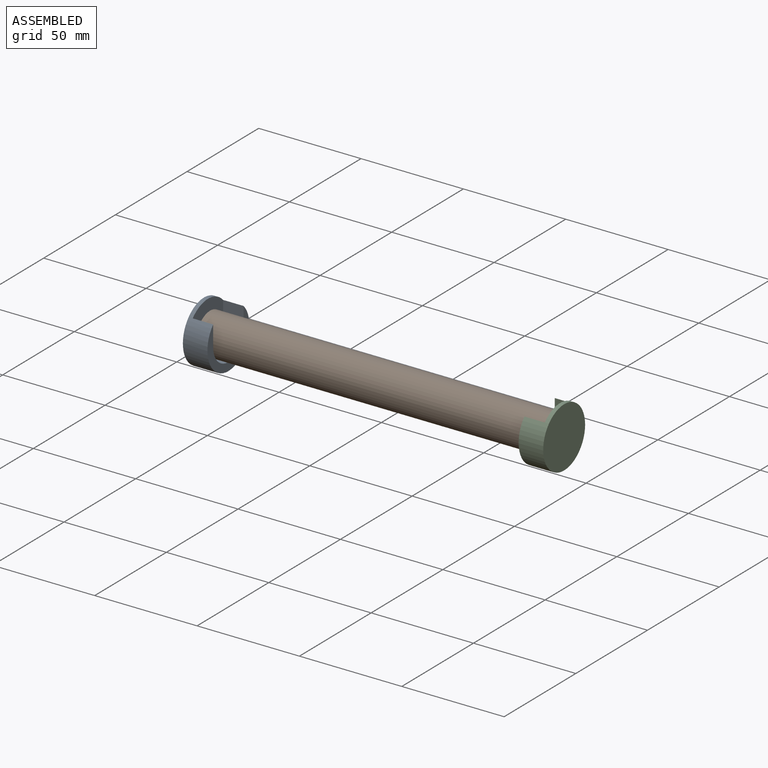
[diagram: assembled view]
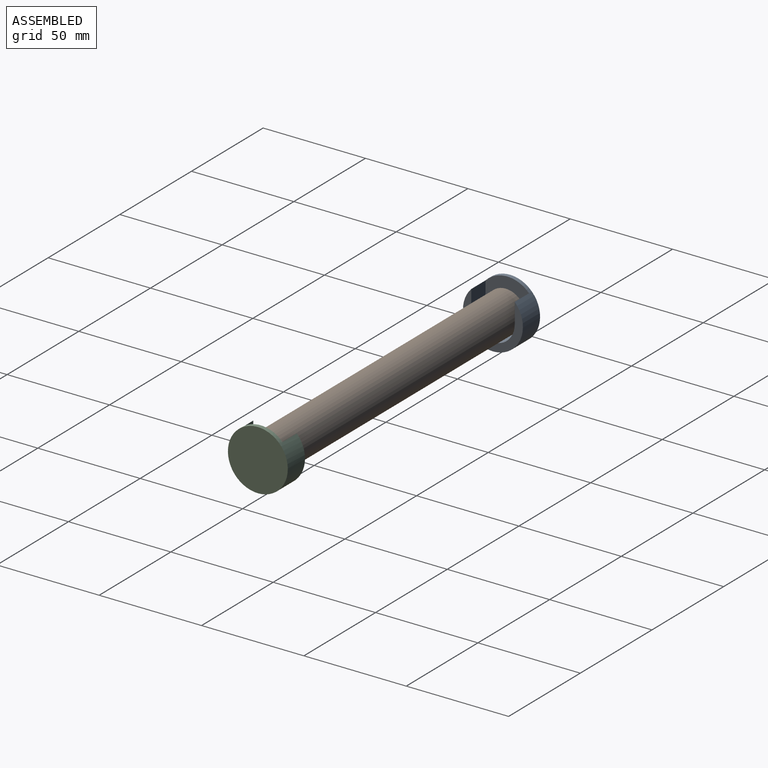
[diagram: assembled view, second angle]
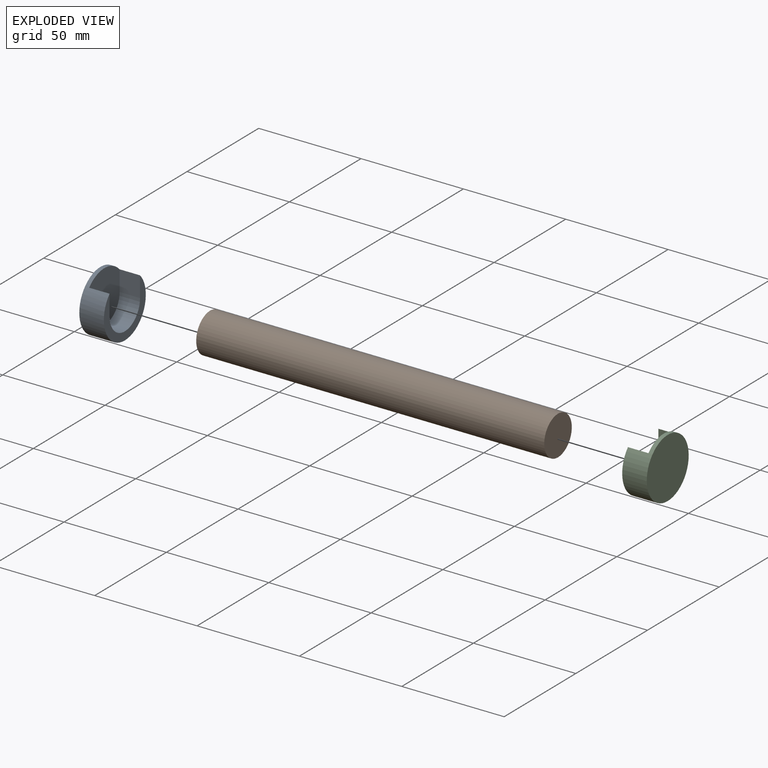
[diagram: exploded view]
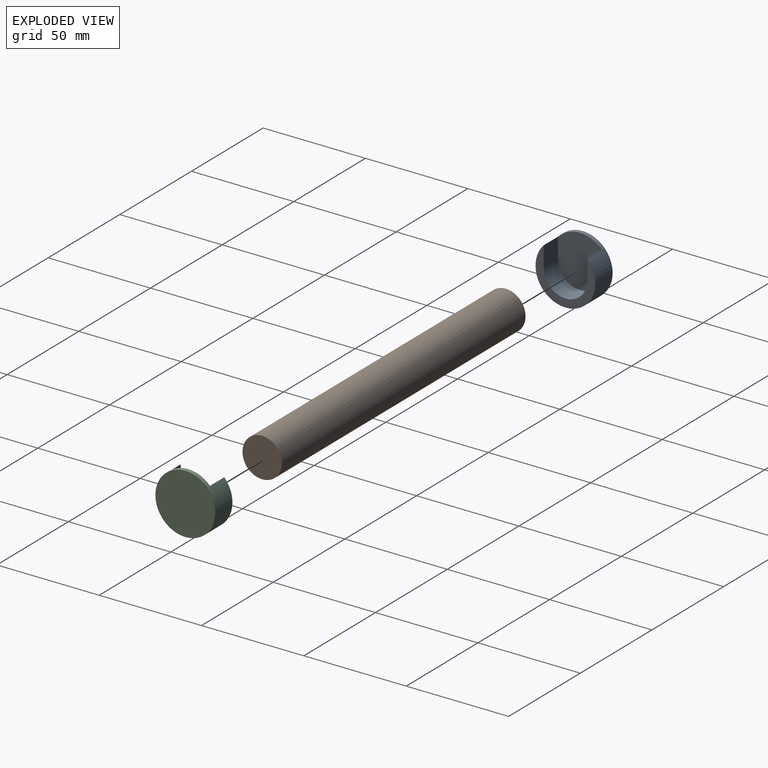
[diagram: exploded view, second angle]
ASSEMBLY  parts=3 mates=2
PART A: 7 faces, bbox 12x29.3x29.3 mm
  f0: plane 25.25x21.25mm, normal (1,0,0), area 458mm2, adj f1,f3,f4,f5
  f1: cylinder r=14.62mm len=29.25mm, axis (-1,0,0), area 864.8mm2, adj f0,f2,f3,f4,f6
  f2: plane 29.25x29.25mm, normal (-1,0,0), area 672mm2, adj f1
  f3: plane 10.05x10mm, normal (0,1,0), area 100.5mm2, adj f0,f1,f5,f6
  f4: plane 10.05x10mm, normal (0,-1,0), area 100.5mm2, adj f0,f1,f5,f6
  f5: cylinder r=10.62mm len=21.25mm, axis (-1,0,0), area 333.8mm2, adj f0,f3,f4,f6
  f6: plane 29.25x24.68mm, normal (1,0,0), area 213.9mm2, adj f1,f3,f4,f5
PART B: 3 faces, bbox 170x19.3x19.3 mm
  f0: cylinder r=9.62mm len=170mm, axis (-1,0,0), area 10280.9mm2, adj f1,f2
  f1: plane 19.25x19.25mm, normal (1,0,0), area 291mm2, adj f0
  f2: plane 19.25x19.25mm, normal (-1,0,0), area 291mm2, adj f0
PART C: same geometry as A
PLACE A t=(-86.72,0,0)mm fixed
PLACE B t=(1.27,0,0)mm
PLACE C rot(axis=(0,0,1),180deg) t=(89.28,0,0)mm
MATE revolute C.f1 <-> B.f0  axis (-1,0,0) through (86.28,0,0)mm
MATE revolute A.f1 <-> B.f0  axis (1,0,0) through (-83.72,0,0)mm
